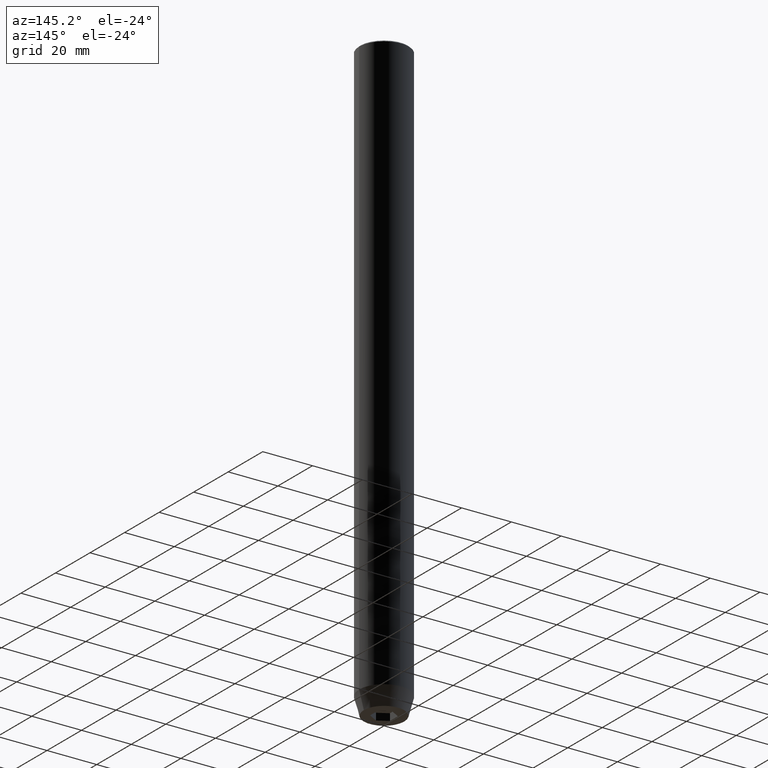
[diagram: clean part render]
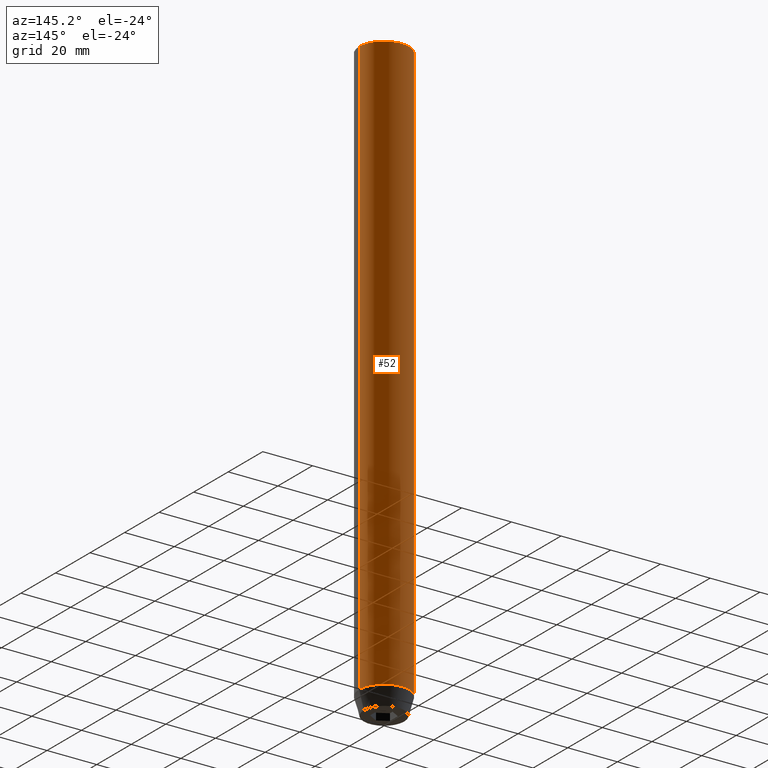
[diagram: same view with one face highlighted and labeled with its STEP entity id]
A machine part, auxiliary view. The second image highlights one B-rep face of the part: STEP entity #52.
In plain terms, the highlighted cylindrical surface (edge-blend (fillet) strip) has radius 10 mm, axis along (-0, -0, 1).
Its self-contained STEP definition (entity closure, byte-faithful):
#12 = VERTEX_POINT ( 'NONE', #393 ) ;
#52 = ADVANCED_FACE ( 'NONE', ( #173 ), #537, .T. ) ;
#68 = VERTEX_POINT ( 'NONE', #397 ) ;
#95 = ORIENTED_EDGE ( 'NONE', *, *, #203, .T. ) ;
#103 = DIRECTION ( 'NONE',  ( -0.000000000000000000, -0.000000000000000000, 1.000000000000000000 ) ) ;
#104 = ORIENTED_EDGE ( 'NONE', *, *, #396, .T. ) ;
#109 = AXIS2_PLACEMENT_3D ( 'NONE', #244, #335, #486 ) ;
#116 = DIRECTION ( 'NONE',  ( -0.000000000000000000, -0.000000000000000000, 1.000000000000000000 ) ) ;
#132 = CARTESIAN_POINT ( 'NONE',  ( 10.00000000000000000, 0.000000000000000000, 0.000000000000000000 ) ) ;
#133 = CIRCLE ( 'NONE', #382, 10.00000000000000000 ) ;
#148 = ORIENTED_EDGE ( 'NONE', *, *, #580, .F. ) ;
#172 = DIRECTION ( 'NONE',  ( 1.000000000000000000, 0.000000000000000000, 0.000000000000000000 ) ) ;
#173 = FACE_OUTER_BOUND ( 'NONE', #223, .T. ) ;
#196 = VERTEX_POINT ( 'NONE', #563 ) ;
#203 = EDGE_CURVE ( 'NONE', #566, #68, #133, .T. ) ;
#213 = VECTOR ( 'NONE', #116, 1000.000000000000000 ) ;
#223 = EDGE_LOOP ( 'NONE', ( #95, #234, #104, #148 ) ) ;
#234 = ORIENTED_EDGE ( 'NONE', *, *, #371, .T. ) ;
#244 = CARTESIAN_POINT ( 'NONE',  ( 0.000000000000000000, 0.000000000000000000, -0.5000000000000264233 ) ) ;
#259 = CIRCLE ( 'NONE', #109, 10.00000000000000000 ) ;
#270 = VECTOR ( 'NONE', #488, 1000.000000000000000 ) ;
#313 = CARTESIAN_POINT ( 'NONE',  ( 0.000000000000000000, 0.000000000000000000, 0.000000000000000000 ) ) ;
#335 = DIRECTION ( 'NONE',  ( 0.000000000000000000, 0.000000000000000000, -1.000000000000000000 ) ) ;
#371 = EDGE_CURVE ( 'NONE', #68, #196, #380, .T. ) ;
#380 = LINE ( 'NONE', #570, #213 ) ;
#382 = AXIS2_PLACEMENT_3D ( 'NONE', #558, #103, #525 ) ;
#393 = CARTESIAN_POINT ( 'NONE',  ( 10.00000000000000000, 0.000000000000000000, -0.5000000000000264233 ) ) ;
#395 = DIRECTION ( 'NONE',  ( -0.000000000000000000, -0.000000000000000000, 1.000000000000000000 ) ) ;
#396 = EDGE_CURVE ( 'NONE', #196, #12, #259, .T. ) ;
#397 = CARTESIAN_POINT ( 'NONE',  ( -10.00000000000000000, 1.224646799147353256E-15, -232.9999999999999716 ) ) ;
#444 = CARTESIAN_POINT ( 'NONE',  ( 10.00000000000000000, 0.000000000000000000, -232.9999999999999716 ) ) ;
#446 = LINE ( 'NONE', #132, #270 ) ;
#458 = AXIS2_PLACEMENT_3D ( 'NONE', #313, #395, #172 ) ;
#486 = DIRECTION ( 'NONE',  ( 1.000000000000000000, 0.000000000000000000, 0.000000000000000000 ) ) ;
#488 = DIRECTION ( 'NONE',  ( -0.000000000000000000, -0.000000000000000000, 1.000000000000000000 ) ) ;
#525 = DIRECTION ( 'NONE',  ( 1.000000000000000000, 0.000000000000000000, 0.000000000000000000 ) ) ;
#537 = CYLINDRICAL_SURFACE ( 'NONE', #458, 10.00000000000000000 ) ;
#558 = CARTESIAN_POINT ( 'NONE',  ( 0.000000000000000000, 0.000000000000000000, -232.9999999999999716 ) ) ;
#563 = CARTESIAN_POINT ( 'NONE',  ( -10.00000000000000000, 1.224646799147353256E-15, -0.5000000000000264233 ) ) ;
#566 = VERTEX_POINT ( 'NONE', #444 ) ;
#570 = CARTESIAN_POINT ( 'NONE',  ( -10.00000000000000000, 1.224646799147353256E-15, 0.000000000000000000 ) ) ;
#580 = EDGE_CURVE ( 'NONE', #566, #12, #446, .T. ) ;